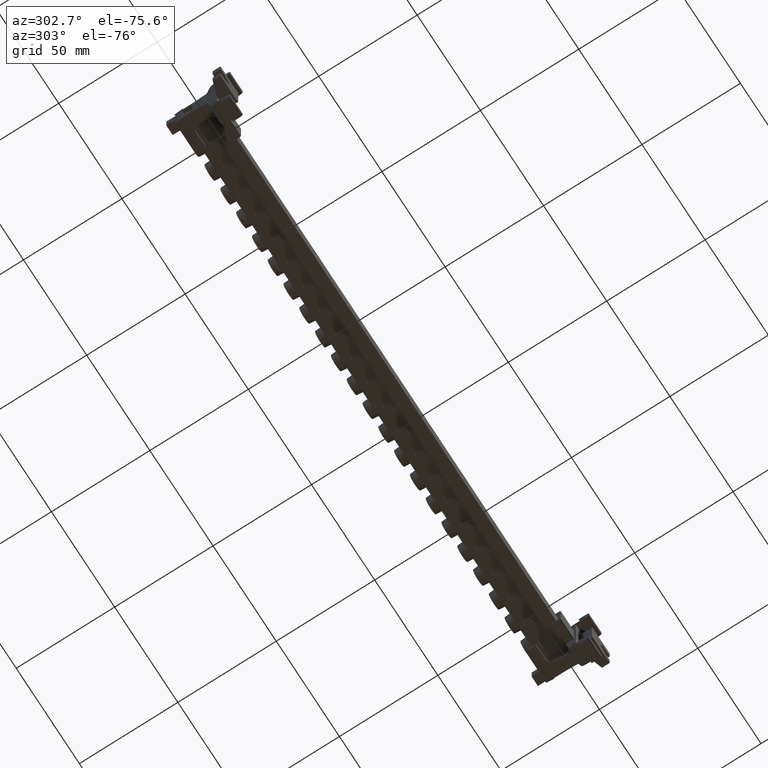
[diagram: clean part render]
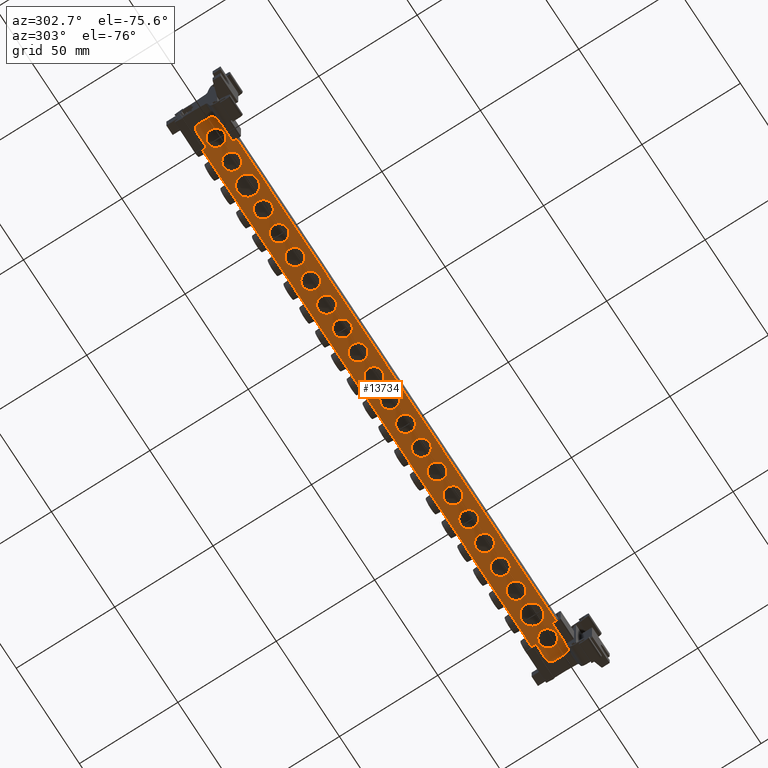
[diagram: same view with one face highlighted and labeled with its STEP entity id]
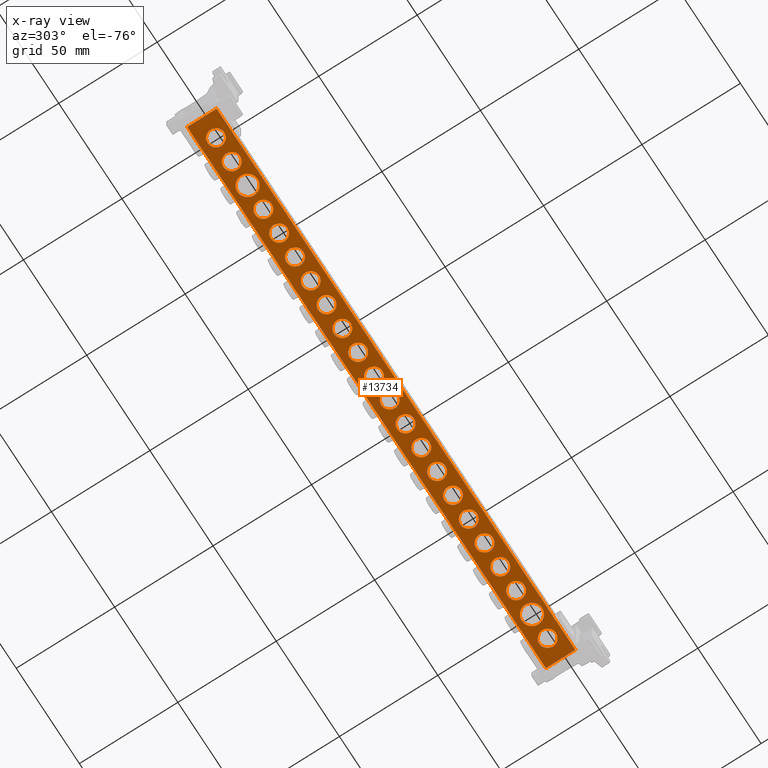
[diagram: x-ray of the same camera — body ghosted, the highlighted face saturated]
A machine part, auxiliary view. The second image highlights one B-rep face of the part: STEP entity #13734.
The next image is the same camera in x-ray: the body ghosted, the highlighted face saturated — about 0% of this face is hidden behind the body in this view.
In plain terms, the highlighted planar face has unit normal (0, 0, -1).
Its self-contained STEP definition (entity closure, byte-faithful):
#1059 = DIRECTION ( 'NONE',  ( 0.0000000000000000000, 0.0000000000000000000, 1.000000000000000000 ) ) ;
#1071 = DIRECTION ( 'NONE',  ( 1.000000000000000000, 0.0000000000000000000, 0.0000000000000000000 ) ) ;
#1085 = CARTESIAN_POINT ( 'NONE',  ( 178.7473023041757500, 54.61882648292871800, 33.07764998369332000 ) ) ;
#1107 = DIRECTION ( 'NONE',  ( 0.0000000000000000000, 0.0000000000000000000, 1.000000000000000000 ) ) ;
#1112 = CARTESIAN_POINT ( 'NONE',  ( 128.7473023041757200, 54.61882648292871800, 33.07764998369332000 ) ) ;
#1122 = DIRECTION ( 'NONE',  ( 1.000000000000000000, 0.0000000000000000000, 0.0000000000000000000 ) ) ;
#1145 = CARTESIAN_POINT ( 'NONE',  ( 141.2473023041756900, 54.61882648292871800, 33.07764998369332000 ) ) ;
#1146 = DIRECTION ( 'NONE',  ( 1.000000000000000000, 0.0000000000000000000, 0.0000000000000000000 ) ) ;
#1164 = DIRECTION ( 'NONE',  ( 0.0000000000000000000, 0.0000000000000000000, 1.000000000000000000 ) ) ;
#1166 = DIRECTION ( 'NONE',  ( 1.000000000000000000, 0.0000000000000000000, 0.0000000000000000000 ) ) ;
#1169 = CARTESIAN_POINT ( 'NONE',  ( 191.2473023041756900, 54.61882648292871800, 33.07764998369332000 ) ) ;
#1176 = EDGE_CURVE ( 'NONE', #16282, #16332, #29328, .T. ) ;
#1177 = DIRECTION ( 'NONE',  ( 1.000000000000000000, 0.0000000000000000000, 0.0000000000000000000 ) ) ;
#1191 = EDGE_CURVE ( 'NONE', #16293, #8404, #29250, .T. ) ;
#1195 = CARTESIAN_POINT ( 'NONE',  ( 91.24730230417574700, 54.61882648292871800, 33.07764998369332000 ) ) ;
#1197 = DIRECTION ( 'NONE',  ( 0.0000000000000000000, 0.0000000000000000000, 1.000000000000000000 ) ) ;
#1198 = EDGE_CURVE ( 'NONE', #16291, #8431, #29266, .T. ) ;
#1202 = EDGE_CURVE ( 'NONE', #16275, #16308, #29326, .T. ) ;
#1205 = DIRECTION ( 'NONE',  ( 0.0000000000000000000, 0.0000000000000000000, 1.000000000000000000 ) ) ;
#1206 = EDGE_CURVE ( 'NONE', #16296, #16271, #29247, .T. ) ;
#1209 = EDGE_CURVE ( 'NONE', #8382, #8414, #29269, .T. ) ;
#1214 = DIRECTION ( 'NONE',  ( 0.0000000000000000000, 0.0000000000000000000, 1.000000000000000000 ) ) ;
#1215 = EDGE_CURVE ( 'NONE', #8404, #16293, #29350, .T. ) ;
#1216 = DIRECTION ( 'NONE',  ( 0.0000000000000000000, 0.0000000000000000000, 1.000000000000000000 ) ) ;
#1221 = EDGE_CURVE ( 'NONE', #8412, #16302, #21157, .T. ) ;
#1224 = EDGE_CURVE ( 'NONE', #16328, #16318, #25059, .T. ) ;
#1230 = CARTESIAN_POINT ( 'NONE',  ( 166.2473023041757200, 54.61882648292871800, 33.07764998369332000 ) ) ;
#1232 = CARTESIAN_POINT ( 'NONE',  ( 153.7473023041757200, 54.61882648292871800, 33.07764998369332000 ) ) ;
#1238 = EDGE_CURVE ( 'NONE', #16294, #16297, #21131, .T. ) ;
#1239 = DIRECTION ( 'NONE',  ( 1.000000000000000000, 0.0000000000000000000, 0.0000000000000000000 ) ) ;
#1241 = DIRECTION ( 'NONE',  ( 1.000000000000000000, 0.0000000000000000000, 0.0000000000000000000 ) ) ;
#1259 = EDGE_CURVE ( 'NONE', #8479, #16280, #21108, .T. ) ;
#1260 = EDGE_CURVE ( 'NONE', #8489, #16285, #21104, .T. ) ;
#1273 = EDGE_CURVE ( 'NONE', #16332, #16282, #21244, .T. ) ;
#1279 = EDGE_CURVE ( 'NONE', #16316, #8393, #21193, .T. ) ;
#1312 = EDGE_CURVE ( 'NONE', #16297, #16294, #25471, .T. ) ;
#1322 = CARTESIAN_POINT ( 'NONE',  ( 103.7473023041757500, 54.61882648292871800, 33.07764998369332000 ) ) ;
#1323 = EDGE_CURVE ( 'NONE', #8431, #16291, #25478, .T. ) ;
#1331 = EDGE_CURVE ( 'NONE', #16302, #8412, #25474, .T. ) ;
#1332 = DIRECTION ( 'NONE',  ( 1.000000000000000000, 0.0000000000000000000, 0.0000000000000000000 ) ) ;
#1336 = EDGE_CURVE ( 'NONE', #8397, #16290, #25470, .T. ) ;
#1339 = EDGE_CURVE ( 'NONE', #8393, #16316, #25488, .T. ) ;
#1346 = EDGE_CURVE ( 'NONE', #16271, #16296, #25483, .T. ) ;
#1352 = EDGE_CURVE ( 'NONE', #16281, #16309, #25254, .T. ) ;
#1354 = DIRECTION ( 'NONE',  ( 1.000000000000000000, 0.0000000000000000000, 0.0000000000000000000 ) ) ;
#1357 = EDGE_CURVE ( 'NONE', #16366, #16312, #5324, .T. ) ;
#1361 = CARTESIAN_POINT ( 'NONE',  ( 116.2473023041757300, 54.61882648292871800, 33.07764998369332000 ) ) ;
#1363 = DIRECTION ( 'NONE',  ( 0.0000000000000000000, 0.0000000000000000000, 1.000000000000000000 ) ) ;
#1372 = EDGE_CURVE ( 'NONE', #16280, #8479, #5334, .T. ) ;
#1380 = EDGE_CURVE ( 'NONE', #16312, #16366, #5329, .T. ) ;
#1384 = DIRECTION ( 'NONE',  ( 0.0000000000000000000, 0.0000000000000000000, 1.000000000000000000 ) ) ;
#2874 = AXIS2_PLACEMENT_3D ( 'NONE', #1145, #1164, #1146 ) ;
#2875 = AXIS2_PLACEMENT_3D ( 'NONE', #1169, #1205, #1177 ) ;
#2880 = AXIS2_PLACEMENT_3D ( 'NONE', #1112, #1107, #1122 ) ;
#2895 = CIRCLE ( 'NONE', #2880, 4.250000000000003600 ) ;
#2909 = AXIS2_PLACEMENT_3D ( 'NONE', #1085, #1059, #1071 ) ;
#2913 = CIRCLE ( 'NONE', #2874, 4.250000000000003600 ) ;
#2917 = AXIS2_PLACEMENT_3D ( 'NONE', #1195, #1197, #1166 ) ;
#2925 = CIRCLE ( 'NONE', #2875, 4.250000000000003600 ) ;
#2926 = CIRCLE ( 'NONE', #2917, 4.250000000000003600 ) ;
#2927 = CIRCLE ( 'NONE', #2909, 4.250000000000003600 ) ;
#2941 = CIRCLE ( 'NONE', #2958, 4.250000000000003600 ) ;
#2942 = CIRCLE ( 'NONE', #2961, 4.250000000000003600 ) ;
#2952 = CIRCLE ( 'NONE', #2963, 4.250000000000003600 ) ;
#2954 = CIRCLE ( 'NONE', #2955, 4.250000000000003600 ) ;
#2955 = AXIS2_PLACEMENT_3D ( 'NONE', #1361, #1363, #1332 ) ;
#2958 = AXIS2_PLACEMENT_3D ( 'NONE', #1232, #1216, #1239 ) ;
#2961 = AXIS2_PLACEMENT_3D ( 'NONE', #1322, #1384, #1354 ) ;
#2963 = AXIS2_PLACEMENT_3D ( 'NONE', #1230, #1214, #1241 ) ;
#4078 = FACE_BOUND ( 'NONE', #24927, .T. ) ;
#4083 = FACE_BOUND ( 'NONE', #24905, .T. ) ;
#4084 = FACE_BOUND ( 'NONE', #24912, .T. ) ;
#4085 = FACE_BOUND ( 'NONE', #24903, .T. ) ;
#4086 = FACE_BOUND ( 'NONE', #24915, .T. ) ;
#4118 = FACE_BOUND ( 'NONE', #24890, .T. ) ;
#4120 = FACE_BOUND ( 'NONE', #24897, .T. ) ;
#4122 = FACE_BOUND ( 'NONE', #24923, .T. ) ;
#4123 = DIRECTION ( 'NONE',  ( -1.000000000000000000, 0.0000000000000000000, -0.0000000000000000000 ) ) ;
#4126 = FACE_BOUND ( 'NONE', #24928, .T. ) ;
#4127 = FACE_BOUND ( 'NONE', #24926, .T. ) ;
#4132 = FACE_BOUND ( 'NONE', #24911, .T. ) ;
#4136 = FACE_BOUND ( 'NONE', #24917, .T. ) ;
#4138 = PLANE ( 'NONE',  #27258 ) ;
#4139 = DIRECTION ( 'NONE',  ( 0.0000000000000000000, 0.0000000000000000000, -1.000000000000000000 ) ) ;
#4140 = FACE_BOUND ( 'NONE', #24898, .T. ) ;
#4141 = FACE_OUTER_BOUND ( 'NONE', #24937, .T. ) ;
#4142 = FACE_BOUND ( 'NONE', #24932, .T. ) ;
#4144 = FACE_BOUND ( 'NONE', #24899, .T. ) ;
#4146 = FACE_BOUND ( 'NONE', #24902, .T. ) ;
#4148 = FACE_BOUND ( 'NONE', #24933, .T. ) ;
#4150 = FACE_BOUND ( 'NONE', #24934, .T. ) ;
#4152 = FACE_BOUND ( 'NONE', #24889, .T. ) ;
#4156 = FACE_BOUND ( 'NONE', #24908, .T. ) ;
#4157 = FACE_BOUND ( 'NONE', #24936, .T. ) ;
#4159 = FACE_BOUND ( 'NONE', #24935, .T. ) ;
#4160 = CARTESIAN_POINT ( 'NONE',  ( -56.95269769582426300, 62.41882648292872200, 33.07764998369332000 ) ) ;
#5313 = VECTOR ( 'NONE', #25285, 1000.000000000000000 ) ;
#5318 = AXIS2_PLACEMENT_3D ( 'NONE', #23551, #23585, #23557 ) ;
#5324 = CIRCLE ( 'NONE', #5325, 5.150000000000002100 ) ;
#5325 = AXIS2_PLACEMENT_3D ( 'NONE', #25266, #25258, #25259 ) ;
#5327 = AXIS2_PLACEMENT_3D ( 'NONE', #25203, #25222, #25224 ) ;
#5329 = CIRCLE ( 'NONE', #5318, 5.150000000000002100 ) ;
#5334 = CIRCLE ( 'NONE', #5338, 4.250000000000005300 ) ;
#5338 = AXIS2_PLACEMENT_3D ( 'NONE', #23549, #23520, #23583 ) ;
#6818 = EDGE_CURVE ( 'NONE', #8271, #8476, #2927, .T. ) ;
#6833 = EDGE_CURVE ( 'NONE', #8443, #8343, #2895, .T. ) ;
#6844 = EDGE_CURVE ( 'NONE', #8288, #8461, #2913, .T. ) ;
#6845 = EDGE_CURVE ( 'NONE', #8388, #8372, #2925, .T. ) ;
#6848 = EDGE_CURVE ( 'NONE', #8463, #8355, #2926, .T. ) ;
#6864 = EDGE_CURVE ( 'NONE', #8472, #8336, #2941, .T. ) ;
#6865 = EDGE_CURVE ( 'NONE', #8269, #8401, #2952, .T. ) ;
#6874 = EDGE_CURVE ( 'NONE', #8459, #8327, #2942, .T. ) ;
#6876 = EDGE_CURVE ( 'NONE', #8416, #8329, #2954, .T. ) ;
#7099 = EDGE_CURVE ( 'NONE', #8457, #16318, #10725, .T. ) ;
#7103 = EDGE_CURVE ( 'NONE', #16438, #16328, #10749, .T. ) ;
#7109 = EDGE_CURVE ( 'NONE', #16440, #16449, #10760, .T. ) ;
#7114 = EDGE_CURVE ( 'NONE', #16309, #16438, #10787, .T. ) ;
#7118 = EDGE_CURVE ( 'NONE', #16449, #16281, #10784, .T. ) ;
#7401 = EDGE_CURVE ( 'NONE', #16308, #16275, #13612, .T. ) ;
#7413 = EDGE_CURVE ( 'NONE', #8414, #8382, #13624, .T. ) ;
#7417 = EDGE_CURVE ( 'NONE', #8457, #16440, #25883, .T. ) ;
#7418 = EDGE_CURVE ( 'NONE', #8355, #8463, #13641, .T. ) ;
#7430 = EDGE_CURVE ( 'NONE', #8401, #8269, #13634, .T. ) ;
#7454 = EDGE_CURVE ( 'NONE', #8327, #8459, #13671, .T. ) ;
#7462 = EDGE_CURVE ( 'NONE', #16285, #8489, #13410, .T. ) ;
#7468 = EDGE_CURVE ( 'NONE', #8329, #8416, #13416, .T. ) ;
#7484 = EDGE_CURVE ( 'NONE', #8336, #8472, #13439, .T. ) ;
#7487 = EDGE_CURVE ( 'NONE', #8343, #8443, #13419, .T. ) ;
#7490 = EDGE_CURVE ( 'NONE', #8461, #8288, #13396, .T. ) ;
#7504 = EDGE_CURVE ( 'NONE', #8476, #8271, #13489, .T. ) ;
#7507 = EDGE_CURVE ( 'NONE', #8372, #8388, #13421, .T. ) ;
#7518 = EDGE_CURVE ( 'NONE', #16290, #8397, #13501, .T. ) ;
#8269 = VERTEX_POINT ( 'NONE', #18442 ) ;
#8271 = VERTEX_POINT ( 'NONE', #18444 ) ;
#8288 = VERTEX_POINT ( 'NONE', #18405 ) ;
#8327 = VERTEX_POINT ( 'NONE', #18445 ) ;
#8329 = VERTEX_POINT ( 'NONE', #18394 ) ;
#8336 = VERTEX_POINT ( 'NONE', #18408 ) ;
#8343 = VERTEX_POINT ( 'NONE', #18433 ) ;
#8355 = VERTEX_POINT ( 'NONE', #18384 ) ;
#8372 = VERTEX_POINT ( 'NONE', #18395 ) ;
#8382 = VERTEX_POINT ( 'NONE', #18475 ) ;
#8388 = VERTEX_POINT ( 'NONE', #18467 ) ;
#8393 = VERTEX_POINT ( 'NONE', #18469 ) ;
#8397 = VERTEX_POINT ( 'NONE', #18461 ) ;
#8401 = VERTEX_POINT ( 'NONE', #18486 ) ;
#8404 = VERTEX_POINT ( 'NONE', #18482 ) ;
#8412 = VERTEX_POINT ( 'NONE', #18449 ) ;
#8414 = VERTEX_POINT ( 'NONE', #18452 ) ;
#8416 = VERTEX_POINT ( 'NONE', #18501 ) ;
#8431 = VERTEX_POINT ( 'NONE', #18454 ) ;
#8443 = VERTEX_POINT ( 'NONE', #18470 ) ;
#8457 = VERTEX_POINT ( 'NONE', #18478 ) ;
#8459 = VERTEX_POINT ( 'NONE', #18496 ) ;
#8461 = VERTEX_POINT ( 'NONE', #18480 ) ;
#8463 = VERTEX_POINT ( 'NONE', #18495 ) ;
#8472 = VERTEX_POINT ( 'NONE', #18479 ) ;
#8476 = VERTEX_POINT ( 'NONE', #18451 ) ;
#8479 = VERTEX_POINT ( 'NONE', #18507 ) ;
#8489 = VERTEX_POINT ( 'NONE', #18488 ) ;
#9422 = CARTESIAN_POINT ( 'NONE',  ( 7.997302304175733000, 54.61882648292871800, 33.07764998369332000 ) ) ;
#9424 = CARTESIAN_POINT ( 'NONE',  ( -56.95269769582426300, 61.91882648293060500, 33.07764998369332000 ) ) ;
#9433 = CARTESIAN_POINT ( 'NONE',  ( 20.49730230417572900, 54.61882648292871800, 33.07764998369332000 ) ) ;
#9438 = CARTESIAN_POINT ( 'NONE',  ( 36.99730230417572600, 54.61882648292871800, 33.07764998369332000 ) ) ;
#9441 = CARTESIAN_POINT ( 'NONE',  ( -56.95269769582426300, 56.91882648293359600, 33.07764998369332000 ) ) ;
#9470 = CARTESIAN_POINT ( 'NONE',  ( -38.00269769582426700, 54.61882648292871800, 33.07764998369332000 ) ) ;
#9475 = CARTESIAN_POINT ( 'NONE',  ( 32.99730230417574000, 54.61882648292871800, 33.07764998369332000 ) ) ;
#9481 = CARTESIAN_POINT ( 'NONE',  ( -42.00269769582426700, 54.61882648292871800, 33.07764998369332000 ) ) ;
#9482 = CARTESIAN_POINT ( 'NONE',  ( -13.00269769582427600, 54.61882648292871800, 33.07764998369332000 ) ) ;
#9486 = CARTESIAN_POINT ( 'NONE',  ( 11.99730230417571900, 54.61882648292871800, 33.07764998369332000 ) ) ;
#9498 = CARTESIAN_POINT ( 'NONE',  ( 82.99730230417573300, 54.61882648292871800, 33.07764998369332000 ) ) ;
#9500 = CARTESIAN_POINT ( 'NONE',  ( 57.99730230417573300, 54.61882648292871800, 33.07764998369332000 ) ) ;
#9505 = CARTESIAN_POINT ( 'NONE',  ( 45.49730230417574000, 54.61882648292871800, 33.07764998369332000 ) ) ;
#9509 = CARTESIAN_POINT ( 'NONE',  ( 24.49730230417573300, 54.61882648292871800, 33.07764998369332000 ) ) ;
#9524 = CARTESIAN_POINT ( 'NONE',  ( 208.8973023041757200, 54.61882648292871800, 33.07764998369332000 ) ) ;
#9542 = CARTESIAN_POINT ( 'NONE',  ( 211.9973023041757200, 54.61882648292871800, 33.07764998369332000 ) ) ;
#9593 = CARTESIAN_POINT ( 'NONE',  ( 219.1473023041759200, 47.41882648292872200, 33.07764998369332000 ) ) ;
#9605 = CARTESIAN_POINT ( 'NONE',  ( -16.10269769582426500, 54.61882648292871800, 33.07764998369332000 ) ) ;
#9608 = CARTESIAN_POINT ( 'NONE',  ( -49.05269769582425000, 47.41882648292872200, 33.07764998369332000 ) ) ;
#9633 = CARTESIAN_POINT ( 'NONE',  ( -29.50269769582426000, 54.61882648292871800, 33.07764998369332000 ) ) ;
#9635 = CARTESIAN_POINT ( 'NONE',  ( -26.40269769582426900, 54.61882648292871800, 33.07764998369332000 ) ) ;
#9687 = CARTESIAN_POINT ( 'NONE',  ( 226.9473023041757100, 62.41882648292872200, 33.07764998369332000 ) ) ;
#9703 = CARTESIAN_POINT ( 'NONE',  ( -56.95269769582406400, 47.41882648293165700, 33.07764998369332000 ) ) ;
#9757 = CARTESIAN_POINT ( 'NONE',  ( -56.95269769582426300, 62.41882648292872200, 33.07764998369332000 ) ) ;
#10723 = CARTESIAN_POINT ( 'NONE',  ( -56.95269769582426300, 62.41882648292872200, 33.07764998369332000 ) ) ;
#10724 = DIRECTION ( 'NONE',  ( -1.000000000000000000, -0.0000000000000000000, -0.0000000000000000000 ) ) ;
#10725 = LINE ( 'NONE', #10751, #17350 ) ;
#10731 = DIRECTION ( 'NONE',  ( 1.000000000000000000, 0.0000000000000000000, 0.0000000000000000000 ) ) ;
#10742 = CARTESIAN_POINT ( 'NONE',  ( -56.95269769582426300, 47.41882648292872200, 33.07764998369332000 ) ) ;
#10746 = DIRECTION ( 'NONE',  ( -1.000000000000000000, -1.017900180445811500E-015, 0.0000000000000000000 ) ) ;
#10749 = LINE ( 'NONE', #10742, #17368 ) ;
#10751 = CARTESIAN_POINT ( 'NONE',  ( -56.95269769582424900, 47.41882648292912700, 33.07764998369332000 ) ) ;
#10760 = LINE ( 'NONE', #10723, #17346 ) ;
#10764 = CARTESIAN_POINT ( 'NONE',  ( -56.95269769582426300, 47.41882648292872200, 33.07764998369332000 ) ) ;
#10784 = LINE ( 'NONE', #10764, #17420 ) ;
#10785 = DIRECTION ( 'NONE',  ( -0.0000000000000000000, -1.000000000000000000, -0.0000000000000000000 ) ) ;
#10787 = LINE ( 'NONE', #10805, #17406 ) ;
#10796 = DIRECTION ( 'NONE',  ( -0.0000000000000000000, -1.000000000000000000, -0.0000000000000000000 ) ) ;
#10805 = CARTESIAN_POINT ( 'NONE',  ( -56.95269769582426300, 47.41882648292872200, 33.07764998369332000 ) ) ;
#13396 = CIRCLE ( 'NONE', #13441, 4.250000000000003600 ) ;
#13410 = CIRCLE ( 'NONE', #13442, 4.250000000000003600 ) ;
#13412 = AXIS2_PLACEMENT_3D ( 'NONE', #26148, #26162, #26155 ) ;
#13416 = CIRCLE ( 'NONE', #13429, 4.250000000000003600 ) ;
#13419 = CIRCLE ( 'NONE', #13426, 4.250000000000003600 ) ;
#13421 = CIRCLE ( 'NONE', #13509, 4.250000000000003600 ) ;
#13426 = AXIS2_PLACEMENT_3D ( 'NONE', #26151, #26142, #26150 ) ;
#13429 = AXIS2_PLACEMENT_3D ( 'NONE', #26048, #26049, #26050 ) ;
#13439 = CIRCLE ( 'NONE', #13412, 4.250000000000003600 ) ;
#13441 = AXIS2_PLACEMENT_3D ( 'NONE', #26156, #26160, #26147 ) ;
#13442 = AXIS2_PLACEMENT_3D ( 'NONE', #26064, #26080, #26069 ) ;
#13469 = AXIS2_PLACEMENT_3D ( 'NONE', #18339, #18373, #18380 ) ;
#13486 = AXIS2_PLACEMENT_3D ( 'NONE', #18297, #18330, #18298 ) ;
#13489 = CIRCLE ( 'NONE', #13486, 4.250000000000003600 ) ;
#13501 = CIRCLE ( 'NONE', #13469, 4.250000000000003600 ) ;
#13509 = AXIS2_PLACEMENT_3D ( 'NONE', #18301, #18326, #18302 ) ;
#13612 = CIRCLE ( 'NONE', #13647, 4.250000000000003600 ) ;
#13621 = AXIS2_PLACEMENT_3D ( 'NONE', #25989, #25973, #25968 ) ;
#13624 = CIRCLE ( 'NONE', #13626, 4.249999999999990200 ) ;
#13625 = AXIS2_PLACEMENT_3D ( 'NONE', #25929, #25934, #25926 ) ;
#13626 = AXIS2_PLACEMENT_3D ( 'NONE', #25884, #25890, #25891 ) ;
#13627 = VECTOR ( 'NONE', #25919, 1000.000000000000000 ) ;
#13634 = CIRCLE ( 'NONE', #13621, 4.250000000000003600 ) ;
#13641 = CIRCLE ( 'NONE', #13625, 4.250000000000003600 ) ;
#13647 = AXIS2_PLACEMENT_3D ( 'NONE', #25882, #25896, #25886 ) ;
#13652 = AXIS2_PLACEMENT_3D ( 'NONE', #26015, #26032, #26034 ) ;
#13671 = CIRCLE ( 'NONE', #13652, 4.250000000000003600 ) ;
#13734 = ADVANCED_FACE ( 'NONE', ( #4083, #4086, #4144, #4150, #4078, #4084, #4146, #4152, #4118, #4085, #4140, #4136, #4157, #4127, #4120, #4122, #4156, #4142, #4132, #4159, #4126, #4148, #4141 ), #4138, .T. ) ;
#16271 = VERTEX_POINT ( 'NONE', #9475 ) ;
#16275 = VERTEX_POINT ( 'NONE', #9438 ) ;
#16280 = VERTEX_POINT ( 'NONE', #9422 ) ;
#16281 = VERTEX_POINT ( 'NONE', #9424 ) ;
#16282 = VERTEX_POINT ( 'NONE', #9470 ) ;
#16285 = VERTEX_POINT ( 'NONE', #9500 ) ;
#16290 = VERTEX_POINT ( 'NONE', #9498 ) ;
#16291 = VERTEX_POINT ( 'NONE', #9482 ) ;
#16293 = VERTEX_POINT ( 'NONE', #9481 ) ;
#16294 = VERTEX_POINT ( 'NONE', #9486 ) ;
#16296 = VERTEX_POINT ( 'NONE', #9509 ) ;
#16297 = VERTEX_POINT ( 'NONE', #9433 ) ;
#16302 = VERTEX_POINT ( 'NONE', #9524 ) ;
#16308 = VERTEX_POINT ( 'NONE', #9505 ) ;
#16309 = VERTEX_POINT ( 'NONE', #9441 ) ;
#16312 = VERTEX_POINT ( 'NONE', #9605 ) ;
#16316 = VERTEX_POINT ( 'NONE', #9542 ) ;
#16318 = VERTEX_POINT ( 'NONE', #9593 ) ;
#16328 = VERTEX_POINT ( 'NONE', #9608 ) ;
#16332 = VERTEX_POINT ( 'NONE', #9633 ) ;
#16366 = VERTEX_POINT ( 'NONE', #9635 ) ;
#16438 = VERTEX_POINT ( 'NONE', #9703 ) ;
#16440 = VERTEX_POINT ( 'NONE', #9687 ) ;
#16449 = VERTEX_POINT ( 'NONE', #9757 ) ;
#17346 = VECTOR ( 'NONE', #10724, 1000.000000000000000 ) ;
#17350 = VECTOR ( 'NONE', #10746, 1000.000000000000000 ) ;
#17368 = VECTOR ( 'NONE', #10731, 1000.000000000000000 ) ;
#17406 = VECTOR ( 'NONE', #10796, 1000.000000000000000 ) ;
#17420 = VECTOR ( 'NONE', #10785, 1000.000000000000000 ) ;
#18297 = CARTESIAN_POINT ( 'NONE',  ( 178.7473023041757500, 54.61882648292871800, 33.07764998369332000 ) ) ;
#18298 = DIRECTION ( 'NONE',  ( 1.000000000000000000, 0.0000000000000000000, 0.0000000000000000000 ) ) ;
#18301 = CARTESIAN_POINT ( 'NONE',  ( 191.2473023041756900, 54.61882648292871800, 33.07764998369332000 ) ) ;
#18302 = DIRECTION ( 'NONE',  ( 1.000000000000000000, 0.0000000000000000000, 0.0000000000000000000 ) ) ;
#18326 = DIRECTION ( 'NONE',  ( 0.0000000000000000000, 0.0000000000000000000, 1.000000000000000000 ) ) ;
#18330 = DIRECTION ( 'NONE',  ( 0.0000000000000000000, 0.0000000000000000000, 1.000000000000000000 ) ) ;
#18339 = CARTESIAN_POINT ( 'NONE',  ( 78.74730230417573300, 54.61882648292871800, 33.07764998369332000 ) ) ;
#18373 = DIRECTION ( 'NONE',  ( 0.0000000000000000000, 0.0000000000000000000, 1.000000000000000000 ) ) ;
#18380 = DIRECTION ( 'NONE',  ( 1.000000000000000000, 0.0000000000000000000, 0.0000000000000000000 ) ) ;
#18384 = CARTESIAN_POINT ( 'NONE',  ( 95.49730230417574700, 54.61882648292871800, 33.07764998369332000 ) ) ;
#18394 = CARTESIAN_POINT ( 'NONE',  ( 120.4973023041757500, 54.61882648292871800, 33.07764998369332000 ) ) ;
#18395 = CARTESIAN_POINT ( 'NONE',  ( 195.4973023041756900, 54.61882648292871800, 33.07764998369332000 ) ) ;
#18405 = CARTESIAN_POINT ( 'NONE',  ( 136.9973023041756900, 54.61882648292871800, 33.07764998369332000 ) ) ;
#18408 = CARTESIAN_POINT ( 'NONE',  ( 157.9973023041757200, 54.61882648292871800, 33.07764998369332000 ) ) ;
#18433 = CARTESIAN_POINT ( 'NONE',  ( 132.9973023041757200, 54.61882648292871800, 33.07764998369332000 ) ) ;
#18442 = CARTESIAN_POINT ( 'NONE',  ( 161.9973023041757200, 54.61882648292871800, 33.07764998369332000 ) ) ;
#18444 = CARTESIAN_POINT ( 'NONE',  ( 174.4973023041757500, 54.61882648292871800, 33.07764998369332000 ) ) ;
#18445 = CARTESIAN_POINT ( 'NONE',  ( 107.9973023041757600, 54.61882648292871800, 33.07764998369332000 ) ) ;
#18449 = CARTESIAN_POINT ( 'NONE',  ( 198.5973023041756800, 54.61882648292871800, 33.07764998369332000 ) ) ;
#18451 = CARTESIAN_POINT ( 'NONE',  ( 182.9973023041757500, 54.61882648292871800, 33.07764998369332000 ) ) ;
#18452 = CARTESIAN_POINT ( 'NONE',  ( 70.49730230417570500, 54.61882648292871800, 33.07764998369332000 ) ) ;
#18454 = CARTESIAN_POINT ( 'NONE',  ( -4.502697695824264400, 54.61882648292871800, 33.07764998369332000 ) ) ;
#18461 = CARTESIAN_POINT ( 'NONE',  ( 74.49730230417573300, 54.61882648292871800, 33.07764998369332000 ) ) ;
#18467 = CARTESIAN_POINT ( 'NONE',  ( 186.9973023041756900, 54.61882648292871800, 33.07764998369332000 ) ) ;
#18469 = CARTESIAN_POINT ( 'NONE',  ( 220.4973023041757200, 54.61882648292871800, 33.07764998369332000 ) ) ;
#18470 = CARTESIAN_POINT ( 'NONE',  ( 124.4973023041757200, 54.61882648292871800, 33.07764998369332000 ) ) ;
#18475 = CARTESIAN_POINT ( 'NONE',  ( 61.99730230417573300, 54.61882648292871800, 33.07764998369332000 ) ) ;
#18478 = CARTESIAN_POINT ( 'NONE',  ( 226.9473023041757400, 47.41882648292941800, 33.07764998369332000 ) ) ;
#18479 = CARTESIAN_POINT ( 'NONE',  ( 149.4973023041757200, 54.61882648292871800, 33.07764998369332000 ) ) ;
#18480 = CARTESIAN_POINT ( 'NONE',  ( 145.4973023041757200, 54.61882648292871800, 33.07764998369332000 ) ) ;
#18482 = CARTESIAN_POINT ( 'NONE',  ( -50.50269769582426000, 54.61882648292871800, 33.07764998369332000 ) ) ;
#18486 = CARTESIAN_POINT ( 'NONE',  ( 170.4973023041757200, 54.61882648292871800, 33.07764998369332000 ) ) ;
#18488 = CARTESIAN_POINT ( 'NONE',  ( 49.49730230417572600, 54.61882648292871800, 33.07764998369332000 ) ) ;
#18495 = CARTESIAN_POINT ( 'NONE',  ( 86.99730230417573300, 54.61882648292871800, 33.07764998369332000 ) ) ;
#18496 = CARTESIAN_POINT ( 'NONE',  ( 99.49730230417574700, 54.61882648292871800, 33.07764998369332000 ) ) ;
#18501 = CARTESIAN_POINT ( 'NONE',  ( 111.9973023041757300, 54.61882648292871800, 33.07764998369332000 ) ) ;
#18507 = CARTESIAN_POINT ( 'NONE',  ( -0.5026976958242782600, 54.61882648292871800, 33.07764998369332000 ) ) ;
#21104 = CIRCLE ( 'NONE', #21133, 4.250000000000003600 ) ;
#21108 = CIRCLE ( 'NONE', #21123, 4.250000000000005300 ) ;
#21110 = AXIS2_PLACEMENT_3D ( 'NONE', #25158, #25127, #25153 ) ;
#21117 = AXIS2_PLACEMENT_3D ( 'NONE', #25050, #25060, #25040 ) ;
#21123 = AXIS2_PLACEMENT_3D ( 'NONE', #25106, #25080, #25110 ) ;
#21131 = CIRCLE ( 'NONE', #21175, 4.250000000000003600 ) ;
#21133 = AXIS2_PLACEMENT_3D ( 'NONE', #25083, #25085, #25086 ) ;
#21157 = CIRCLE ( 'NONE', #21117, 5.150000000000015500 ) ;
#21175 = AXIS2_PLACEMENT_3D ( 'NONE', #25105, #25089, #25076 ) ;
#21193 = CIRCLE ( 'NONE', #21196, 4.250000000000003600 ) ;
#21196 = AXIS2_PLACEMENT_3D ( 'NONE', #25148, #25137, #25152 ) ;
#21211 = VECTOR ( 'NONE', #25029, 1000.000000000000000 ) ;
#21244 = CIRCLE ( 'NONE', #21110, 4.250000000000003600 ) ;
#23520 = DIRECTION ( 'NONE',  ( 0.0000000000000000000, 0.0000000000000000000, 1.000000000000000000 ) ) ;
#23549 = CARTESIAN_POINT ( 'NONE',  ( 3.747302304175727200, 54.61882648292871800, 33.07764998369332000 ) ) ;
#23551 = CARTESIAN_POINT ( 'NONE',  ( -21.25269769582426700, 54.61882648292871800, 33.07764998369332000 ) ) ;
#23557 = DIRECTION ( 'NONE',  ( 1.000000000000000000, 0.0000000000000000000, 0.0000000000000000000 ) ) ;
#23583 = DIRECTION ( 'NONE',  ( 1.000000000000000000, 0.0000000000000000000, 0.0000000000000000000 ) ) ;
#23585 = DIRECTION ( 'NONE',  ( 0.0000000000000000000, 0.0000000000000000000, 1.000000000000000000 ) ) ;
#24889 = EDGE_LOOP ( 'NONE', ( #28333, #28347 ) ) ;
#24890 = EDGE_LOOP ( 'NONE', ( #28375, #28346 ) ) ;
#24897 = EDGE_LOOP ( 'NONE', ( #28367, #28383 ) ) ;
#24898 = EDGE_LOOP ( 'NONE', ( #28342, #28343 ) ) ;
#24899 = EDGE_LOOP ( 'NONE', ( #28321, #28319 ) ) ;
#24902 = EDGE_LOOP ( 'NONE', ( #28401, #28373 ) ) ;
#24903 = EDGE_LOOP ( 'NONE', ( #28300, #28320 ) ) ;
#24905 = EDGE_LOOP ( 'NONE', ( #28404, #28299 ) ) ;
#24908 = EDGE_LOOP ( 'NONE', ( #28379, #28322 ) ) ;
#24911 = EDGE_LOOP ( 'NONE', ( #28409, #28408 ) ) ;
#24912 = EDGE_LOOP ( 'NONE', ( #28405, #28303 ) ) ;
#24915 = EDGE_LOOP ( 'NONE', ( #28307, #28308 ) ) ;
#24917 = EDGE_LOOP ( 'NONE', ( #28349, #28352 ) ) ;
#24923 = EDGE_LOOP ( 'NONE', ( #28332, #28351 ) ) ;
#24926 = EDGE_LOOP ( 'NONE', ( #28394, #28411 ) ) ;
#24927 = EDGE_LOOP ( 'NONE', ( #28345, #28413 ) ) ;
#24928 = EDGE_LOOP ( 'NONE', ( #28326, #28393 ) ) ;
#24932 = EDGE_LOOP ( 'NONE', ( #28305, #28293 ) ) ;
#24933 = EDGE_LOOP ( 'NONE', ( #28325, #28318 ) ) ;
#24934 = EDGE_LOOP ( 'NONE', ( #28348, #28369 ) ) ;
#24935 = EDGE_LOOP ( 'NONE', ( #28323, #28366 ) ) ;
#24936 = EDGE_LOOP ( 'NONE', ( #28361, #28376 ) ) ;
#24937 = EDGE_LOOP ( 'NONE', ( #28339, #28329, #28335, #28341, #28418, #28354, #28455, #28390 ) ) ;
#24940 = DIRECTION ( 'NONE',  ( 1.000000000000000000, 0.0000000000000000000, 0.0000000000000000000 ) ) ;
#24948 = CARTESIAN_POINT ( 'NONE',  ( -33.75269769582426700, 54.61882648292871800, 33.07764998369332000 ) ) ;
#24949 = DIRECTION ( 'NONE',  ( 0.0000000000000000000, 0.0000000000000000000, 1.000000000000000000 ) ) ;
#24984 = DIRECTION ( 'NONE',  ( 1.000000000000000000, 0.0000000000000000000, 0.0000000000000000000 ) ) ;
#24985 = DIRECTION ( 'NONE',  ( 0.0000000000000000000, 0.0000000000000000000, 1.000000000000000000 ) ) ;
#24986 = DIRECTION ( 'NONE',  ( 1.000000000000000000, 0.0000000000000000000, 0.0000000000000000000 ) ) ;
#24987 = DIRECTION ( 'NONE',  ( 0.0000000000000000000, 0.0000000000000000000, 1.000000000000000000 ) ) ;
#24988 = DIRECTION ( 'NONE',  ( 0.0000000000000000000, 0.0000000000000000000, 1.000000000000000000 ) ) ;
#24989 = CARTESIAN_POINT ( 'NONE',  ( -46.25269769582426000, 54.61882648292871800, 33.07764998369332000 ) ) ;
#25003 = CARTESIAN_POINT ( 'NONE',  ( 28.74730230417573700, 54.61882648292871800, 33.07764998369332000 ) ) ;
#25008 = CARTESIAN_POINT ( 'NONE',  ( -8.752697695824270600, 54.61882648292871800, 33.07764998369332000 ) ) ;
#25011 = DIRECTION ( 'NONE',  ( 0.0000000000000000000, 0.0000000000000000000, 1.000000000000000000 ) ) ;
#25012 = DIRECTION ( 'NONE',  ( 1.000000000000000000, 0.0000000000000000000, 0.0000000000000000000 ) ) ;
#25016 = CARTESIAN_POINT ( 'NONE',  ( 41.24730230417573300, 54.61882648292871800, 33.07764998369332000 ) ) ;
#25020 = DIRECTION ( 'NONE',  ( 1.000000000000000000, 0.0000000000000000000, 0.0000000000000000000 ) ) ;
#25029 = DIRECTION ( 'NONE',  ( 1.000000000000000000, 0.0000000000000000000, 0.0000000000000000000 ) ) ;
#25032 = CARTESIAN_POINT ( 'NONE',  ( -46.25269769582426000, 54.61882648292871800, 33.07764998369332000 ) ) ;
#25040 = DIRECTION ( 'NONE',  ( 1.000000000000000000, 0.0000000000000000000, 0.0000000000000000000 ) ) ;
#25049 = CARTESIAN_POINT ( 'NONE',  ( -56.95269769582426300, 47.41882648292872200, 33.07764998369332000 ) ) ;
#25050 = CARTESIAN_POINT ( 'NONE',  ( 203.7473023041756900, 54.61882648292871800, 33.07764998369332000 ) ) ;
#25053 = DIRECTION ( 'NONE',  ( 1.000000000000000000, 0.0000000000000000000, 0.0000000000000000000 ) ) ;
#25057 = DIRECTION ( 'NONE',  ( 0.0000000000000000000, 0.0000000000000000000, 1.000000000000000000 ) ) ;
#25058 = CARTESIAN_POINT ( 'NONE',  ( 66.24730230417571900, 54.61882648292871800, 33.07764998369332000 ) ) ;
#25059 = LINE ( 'NONE', #25049, #21211 ) ;
#25060 = DIRECTION ( 'NONE',  ( 0.0000000000000000000, 0.0000000000000000000, 1.000000000000000000 ) ) ;
#25061 = DIRECTION ( 'NONE',  ( 0.0000000000000000000, 0.0000000000000000000, 1.000000000000000000 ) ) ;
#25068 = DIRECTION ( 'NONE',  ( 1.000000000000000000, 0.0000000000000000000, 0.0000000000000000000 ) ) ;
#25076 = DIRECTION ( 'NONE',  ( 1.000000000000000000, 0.0000000000000000000, 0.0000000000000000000 ) ) ;
#25080 = DIRECTION ( 'NONE',  ( 0.0000000000000000000, 0.0000000000000000000, 1.000000000000000000 ) ) ;
#25083 = CARTESIAN_POINT ( 'NONE',  ( 53.74730230417573300, 54.61882648292871800, 33.07764998369332000 ) ) ;
#25085 = DIRECTION ( 'NONE',  ( 0.0000000000000000000, 0.0000000000000000000, 1.000000000000000000 ) ) ;
#25086 = DIRECTION ( 'NONE',  ( 1.000000000000000000, 0.0000000000000000000, 0.0000000000000000000 ) ) ;
#25089 = DIRECTION ( 'NONE',  ( 0.0000000000000000000, 0.0000000000000000000, 1.000000000000000000 ) ) ;
#25105 = CARTESIAN_POINT ( 'NONE',  ( 16.24730230417572600, 54.61882648292871800, 33.07764998369332000 ) ) ;
#25106 = CARTESIAN_POINT ( 'NONE',  ( 3.747302304175727200, 54.61882648292871800, 33.07764998369332000 ) ) ;
#25110 = DIRECTION ( 'NONE',  ( 1.000000000000000000, 0.0000000000000000000, 0.0000000000000000000 ) ) ;
#25127 = DIRECTION ( 'NONE',  ( 0.0000000000000000000, 0.0000000000000000000, 1.000000000000000000 ) ) ;
#25137 = DIRECTION ( 'NONE',  ( 0.0000000000000000000, 0.0000000000000000000, 1.000000000000000000 ) ) ;
#25148 = CARTESIAN_POINT ( 'NONE',  ( 216.2473023041757200, 54.61882648292871800, 33.07764998369332000 ) ) ;
#25152 = DIRECTION ( 'NONE',  ( 1.000000000000000000, 0.0000000000000000000, 0.0000000000000000000 ) ) ;
#25153 = DIRECTION ( 'NONE',  ( 1.000000000000000000, 0.0000000000000000000, 0.0000000000000000000 ) ) ;
#25158 = CARTESIAN_POINT ( 'NONE',  ( -33.75269769582426700, 54.61882648292871800, 33.07764998369332000 ) ) ;
#25165 = CARTESIAN_POINT ( 'NONE',  ( 16.24730230417572600, 54.61882648292871800, 33.07764998369332000 ) ) ;
#25177 = DIRECTION ( 'NONE',  ( 0.0000000000000000000, 0.0000000000000000000, 1.000000000000000000 ) ) ;
#25179 = DIRECTION ( 'NONE',  ( 1.000000000000000000, 0.0000000000000000000, 0.0000000000000000000 ) ) ;
#25203 = CARTESIAN_POINT ( 'NONE',  ( 28.74730230417573700, 54.61882648292871800, 33.07764998369332000 ) ) ;
#25204 = DIRECTION ( 'NONE',  ( 0.0000000000000000000, 0.0000000000000000000, 1.000000000000000000 ) ) ;
#25207 = DIRECTION ( 'NONE',  ( 1.000000000000000000, 0.0000000000000000000, 0.0000000000000000000 ) ) ;
#25208 = CARTESIAN_POINT ( 'NONE',  ( 216.2473023041757200, 54.61882648292871800, 33.07764998369332000 ) ) ;
#25222 = DIRECTION ( 'NONE',  ( 0.0000000000000000000, 0.0000000000000000000, 1.000000000000000000 ) ) ;
#25224 = DIRECTION ( 'NONE',  ( 1.000000000000000000, 0.0000000000000000000, 0.0000000000000000000 ) ) ;
#25227 = DIRECTION ( 'NONE',  ( 1.000000000000000000, 0.0000000000000000000, 0.0000000000000000000 ) ) ;
#25230 = CARTESIAN_POINT ( 'NONE',  ( -8.752697695824270600, 54.61882648292871800, 33.07764998369332000 ) ) ;
#25232 = DIRECTION ( 'NONE',  ( 1.000000000000000000, 0.0000000000000000000, 0.0000000000000000000 ) ) ;
#25234 = CARTESIAN_POINT ( 'NONE',  ( 203.7473023041756900, 54.61882648292871800, 33.07764998369332000 ) ) ;
#25235 = DIRECTION ( 'NONE',  ( 1.000000000000000000, 0.0000000000000000000, 0.0000000000000000000 ) ) ;
#25237 = DIRECTION ( 'NONE',  ( 0.0000000000000000000, 0.0000000000000000000, 1.000000000000000000 ) ) ;
#25240 = CARTESIAN_POINT ( 'NONE',  ( 78.74730230417573300, 54.61882648292871800, 33.07764998369332000 ) ) ;
#25242 = DIRECTION ( 'NONE',  ( 0.0000000000000000000, 0.0000000000000000000, 1.000000000000000000 ) ) ;
#25244 = DIRECTION ( 'NONE',  ( 0.0000000000000000000, 0.0000000000000000000, 1.000000000000000000 ) ) ;
#25252 = CARTESIAN_POINT ( 'NONE',  ( -56.95269769582426300, 47.41882648292872200, 33.07764998369332000 ) ) ;
#25254 = LINE ( 'NONE', #25252, #5313 ) ;
#25258 = DIRECTION ( 'NONE',  ( 0.0000000000000000000, 0.0000000000000000000, 1.000000000000000000 ) ) ;
#25259 = DIRECTION ( 'NONE',  ( 1.000000000000000000, 0.0000000000000000000, 0.0000000000000000000 ) ) ;
#25266 = CARTESIAN_POINT ( 'NONE',  ( -21.25269769582426700, 54.61882648292871800, 33.07764998369332000 ) ) ;
#25285 = DIRECTION ( 'NONE',  ( -0.0000000000000000000, -1.000000000000000000, -0.0000000000000000000 ) ) ;
#25470 = CIRCLE ( 'NONE', #25480, 4.250000000000003600 ) ;
#25471 = CIRCLE ( 'NONE', #25472, 4.250000000000003600 ) ;
#25472 = AXIS2_PLACEMENT_3D ( 'NONE', #25165, #25177, #25179 ) ;
#25473 = AXIS2_PLACEMENT_3D ( 'NONE', #25208, #25244, #25235 ) ;
#25474 = CIRCLE ( 'NONE', #25475, 5.150000000000015500 ) ;
#25475 = AXIS2_PLACEMENT_3D ( 'NONE', #25234, #25237, #25232 ) ;
#25478 = CIRCLE ( 'NONE', #25490, 4.250000000000005300 ) ;
#25480 = AXIS2_PLACEMENT_3D ( 'NONE', #25240, #25242, #25207 ) ;
#25483 = CIRCLE ( 'NONE', #5327, 4.250000000000003600 ) ;
#25488 = CIRCLE ( 'NONE', #25473, 4.250000000000003600 ) ;
#25490 = AXIS2_PLACEMENT_3D ( 'NONE', #25230, #25204, #25227 ) ;
#25882 = CARTESIAN_POINT ( 'NONE',  ( 41.24730230417573300, 54.61882648292871800, 33.07764998369332000 ) ) ;
#25883 = LINE ( 'NONE', #25893, #13627 ) ;
#25884 = CARTESIAN_POINT ( 'NONE',  ( 66.24730230417571900, 54.61882648292871800, 33.07764998369332000 ) ) ;
#25886 = DIRECTION ( 'NONE',  ( 1.000000000000000000, 0.0000000000000000000, 0.0000000000000000000 ) ) ;
#25890 = DIRECTION ( 'NONE',  ( 0.0000000000000000000, 0.0000000000000000000, 1.000000000000000000 ) ) ;
#25891 = DIRECTION ( 'NONE',  ( 1.000000000000000000, 0.0000000000000000000, 0.0000000000000000000 ) ) ;
#25893 = CARTESIAN_POINT ( 'NONE',  ( 226.9473023041757100, 47.41882648292872200, 33.07764998369332000 ) ) ;
#25896 = DIRECTION ( 'NONE',  ( 0.0000000000000000000, 0.0000000000000000000, 1.000000000000000000 ) ) ;
#25919 = DIRECTION ( 'NONE',  ( 0.0000000000000000000, 1.000000000000000000, 0.0000000000000000000 ) ) ;
#25926 = DIRECTION ( 'NONE',  ( 1.000000000000000000, 0.0000000000000000000, 0.0000000000000000000 ) ) ;
#25929 = CARTESIAN_POINT ( 'NONE',  ( 91.24730230417574700, 54.61882648292871800, 33.07764998369332000 ) ) ;
#25934 = DIRECTION ( 'NONE',  ( 0.0000000000000000000, 0.0000000000000000000, 1.000000000000000000 ) ) ;
#25968 = DIRECTION ( 'NONE',  ( 1.000000000000000000, 0.0000000000000000000, 0.0000000000000000000 ) ) ;
#25973 = DIRECTION ( 'NONE',  ( 0.0000000000000000000, 0.0000000000000000000, 1.000000000000000000 ) ) ;
#25989 = CARTESIAN_POINT ( 'NONE',  ( 166.2473023041757200, 54.61882648292871800, 33.07764998369332000 ) ) ;
#26015 = CARTESIAN_POINT ( 'NONE',  ( 103.7473023041757500, 54.61882648292871800, 33.07764998369332000 ) ) ;
#26032 = DIRECTION ( 'NONE',  ( 0.0000000000000000000, 0.0000000000000000000, 1.000000000000000000 ) ) ;
#26034 = DIRECTION ( 'NONE',  ( 1.000000000000000000, 0.0000000000000000000, 0.0000000000000000000 ) ) ;
#26048 = CARTESIAN_POINT ( 'NONE',  ( 116.2473023041757300, 54.61882648292871800, 33.07764998369332000 ) ) ;
#26049 = DIRECTION ( 'NONE',  ( 0.0000000000000000000, 0.0000000000000000000, 1.000000000000000000 ) ) ;
#26050 = DIRECTION ( 'NONE',  ( 1.000000000000000000, 0.0000000000000000000, 0.0000000000000000000 ) ) ;
#26064 = CARTESIAN_POINT ( 'NONE',  ( 53.74730230417573300, 54.61882648292871800, 33.07764998369332000 ) ) ;
#26069 = DIRECTION ( 'NONE',  ( 1.000000000000000000, 0.0000000000000000000, 0.0000000000000000000 ) ) ;
#26080 = DIRECTION ( 'NONE',  ( 0.0000000000000000000, 0.0000000000000000000, 1.000000000000000000 ) ) ;
#26142 = DIRECTION ( 'NONE',  ( 0.0000000000000000000, 0.0000000000000000000, 1.000000000000000000 ) ) ;
#26147 = DIRECTION ( 'NONE',  ( 1.000000000000000000, 0.0000000000000000000, 0.0000000000000000000 ) ) ;
#26148 = CARTESIAN_POINT ( 'NONE',  ( 153.7473023041757200, 54.61882648292871800, 33.07764998369332000 ) ) ;
#26150 = DIRECTION ( 'NONE',  ( 1.000000000000000000, 0.0000000000000000000, 0.0000000000000000000 ) ) ;
#26151 = CARTESIAN_POINT ( 'NONE',  ( 128.7473023041757200, 54.61882648292871800, 33.07764998369332000 ) ) ;
#26155 = DIRECTION ( 'NONE',  ( 1.000000000000000000, 0.0000000000000000000, 0.0000000000000000000 ) ) ;
#26156 = CARTESIAN_POINT ( 'NONE',  ( 141.2473023041756900, 54.61882648292871800, 33.07764998369332000 ) ) ;
#26160 = DIRECTION ( 'NONE',  ( 0.0000000000000000000, 0.0000000000000000000, 1.000000000000000000 ) ) ;
#26162 = DIRECTION ( 'NONE',  ( 0.0000000000000000000, 0.0000000000000000000, 1.000000000000000000 ) ) ;
#27258 = AXIS2_PLACEMENT_3D ( 'NONE', #4160, #4139, #4123 ) ;
#28293 = ORIENTED_EDGE ( 'NONE', *, *, #1221, .T. ) ;
#28299 = ORIENTED_EDGE ( 'NONE', *, *, #6845, .T. ) ;
#28300 = ORIENTED_EDGE ( 'NONE', *, *, #7518, .T. ) ;
#28303 = ORIENTED_EDGE ( 'NONE', *, *, #6833, .T. ) ;
#28305 = ORIENTED_EDGE ( 'NONE', *, *, #1331, .T. ) ;
#28307 = ORIENTED_EDGE ( 'NONE', *, *, #7504, .T. ) ;
#28308 = ORIENTED_EDGE ( 'NONE', *, *, #6818, .T. ) ;
#28318 = ORIENTED_EDGE ( 'NONE', *, *, #1215, .T. ) ;
#28319 = ORIENTED_EDGE ( 'NONE', *, *, #6865, .T. ) ;
#28320 = ORIENTED_EDGE ( 'NONE', *, *, #1336, .T. ) ;
#28321 = ORIENTED_EDGE ( 'NONE', *, *, #7430, .T. ) ;
#28322 = ORIENTED_EDGE ( 'NONE', *, *, #1259, .T. ) ;
#28323 = ORIENTED_EDGE ( 'NONE', *, *, #1380, .T. ) ;
#28325 = ORIENTED_EDGE ( 'NONE', *, *, #1191, .T. ) ;
#28326 = ORIENTED_EDGE ( 'NONE', *, *, #1273, .T. ) ;
#28329 = ORIENTED_EDGE ( 'NONE', *, *, #7109, .F. ) ;
#28332 = ORIENTED_EDGE ( 'NONE', *, *, #1323, .T. ) ;
#28333 = ORIENTED_EDGE ( 'NONE', *, *, #7454, .T. ) ;
#28335 = ORIENTED_EDGE ( 'NONE', *, *, #7417, .F. ) ;
#28339 = ORIENTED_EDGE ( 'NONE', *, *, #7118, .F. ) ;
#28341 = ORIENTED_EDGE ( 'NONE', *, *, #7099, .T. ) ;
#28342 = ORIENTED_EDGE ( 'NONE', *, *, #7413, .T. ) ;
#28343 = ORIENTED_EDGE ( 'NONE', *, *, #1209, .T. ) ;
#28345 = ORIENTED_EDGE ( 'NONE', *, *, #7490, .T. ) ;
#28346 = ORIENTED_EDGE ( 'NONE', *, *, #6848, .T. ) ;
#28347 = ORIENTED_EDGE ( 'NONE', *, *, #6874, .T. ) ;
#28348 = ORIENTED_EDGE ( 'NONE', *, *, #7484, .T. ) ;
#28349 = ORIENTED_EDGE ( 'NONE', *, *, #7462, .T. ) ;
#28351 = ORIENTED_EDGE ( 'NONE', *, *, #1198, .T. ) ;
#28352 = ORIENTED_EDGE ( 'NONE', *, *, #1260, .T. ) ;
#28354 = ORIENTED_EDGE ( 'NONE', *, *, #7103, .F. ) ;
#28361 = ORIENTED_EDGE ( 'NONE', *, *, #7401, .T. ) ;
#28366 = ORIENTED_EDGE ( 'NONE', *, *, #1357, .T. ) ;
#28367 = ORIENTED_EDGE ( 'NONE', *, *, #1312, .T. ) ;
#28369 = ORIENTED_EDGE ( 'NONE', *, *, #6864, .T. ) ;
#28373 = ORIENTED_EDGE ( 'NONE', *, *, #6876, .T. ) ;
#28375 = ORIENTED_EDGE ( 'NONE', *, *, #7418, .T. ) ;
#28376 = ORIENTED_EDGE ( 'NONE', *, *, #1202, .T. ) ;
#28379 = ORIENTED_EDGE ( 'NONE', *, *, #1372, .T. ) ;
#28383 = ORIENTED_EDGE ( 'NONE', *, *, #1238, .T. ) ;
#28390 = ORIENTED_EDGE ( 'NONE', *, *, #1352, .F. ) ;
#28393 = ORIENTED_EDGE ( 'NONE', *, *, #1176, .T. ) ;
#28394 = ORIENTED_EDGE ( 'NONE', *, *, #1346, .T. ) ;
#28401 = ORIENTED_EDGE ( 'NONE', *, *, #7468, .T. ) ;
#28404 = ORIENTED_EDGE ( 'NONE', *, *, #7507, .T. ) ;
#28405 = ORIENTED_EDGE ( 'NONE', *, *, #7487, .T. ) ;
#28408 = ORIENTED_EDGE ( 'NONE', *, *, #1279, .T. ) ;
#28409 = ORIENTED_EDGE ( 'NONE', *, *, #1339, .T. ) ;
#28411 = ORIENTED_EDGE ( 'NONE', *, *, #1206, .T. ) ;
#28413 = ORIENTED_EDGE ( 'NONE', *, *, #6844, .T. ) ;
#28418 = ORIENTED_EDGE ( 'NONE', *, *, #1224, .F. ) ;
#28455 = ORIENTED_EDGE ( 'NONE', *, *, #7114, .F. ) ;
#29245 = AXIS2_PLACEMENT_3D ( 'NONE', #25058, #25061, #25053 ) ;
#29247 = CIRCLE ( 'NONE', #29293, 4.250000000000003600 ) ;
#29250 = CIRCLE ( 'NONE', #29325, 4.249999999999996400 ) ;
#29252 = AXIS2_PLACEMENT_3D ( 'NONE', #25016, #24987, #24984 ) ;
#29261 = AXIS2_PLACEMENT_3D ( 'NONE', #24948, #24949, #24940 ) ;
#29266 = CIRCLE ( 'NONE', #29289, 4.250000000000005300 ) ;
#29269 = CIRCLE ( 'NONE', #29245, 4.249999999999990200 ) ;
#29289 = AXIS2_PLACEMENT_3D ( 'NONE', #25008, #25011, #25012 ) ;
#29293 = AXIS2_PLACEMENT_3D ( 'NONE', #25003, #24985, #24986 ) ;
#29325 = AXIS2_PLACEMENT_3D ( 'NONE', #24989, #24988, #25020 ) ;
#29326 = CIRCLE ( 'NONE', #29252, 4.250000000000003600 ) ;
#29328 = CIRCLE ( 'NONE', #29261, 4.250000000000003600 ) ;
#29350 = CIRCLE ( 'NONE', #29352, 4.249999999999996400 ) ;
#29352 = AXIS2_PLACEMENT_3D ( 'NONE', #25032, #25057, #25068 ) ;